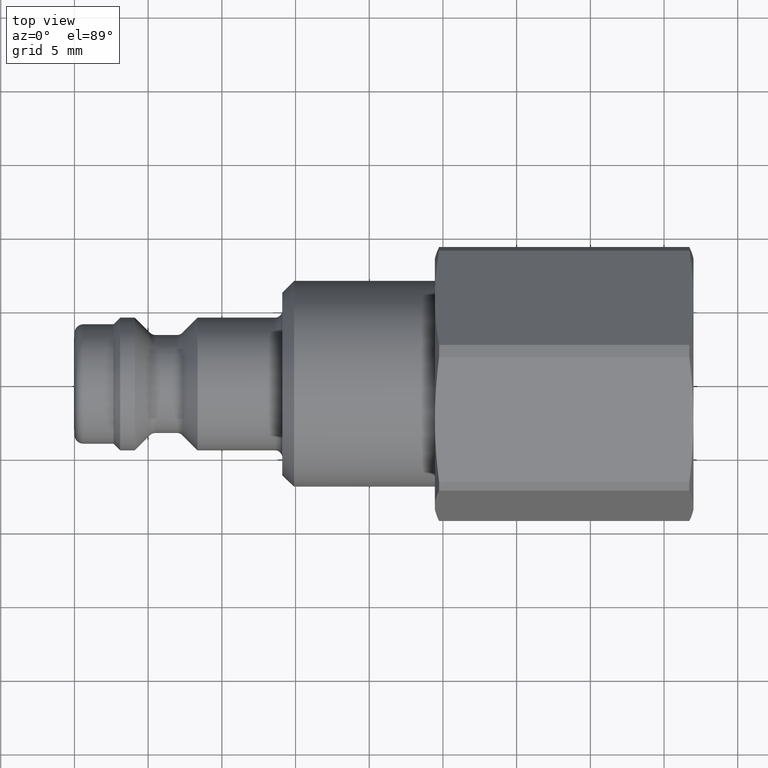
[diagram: clean part render]
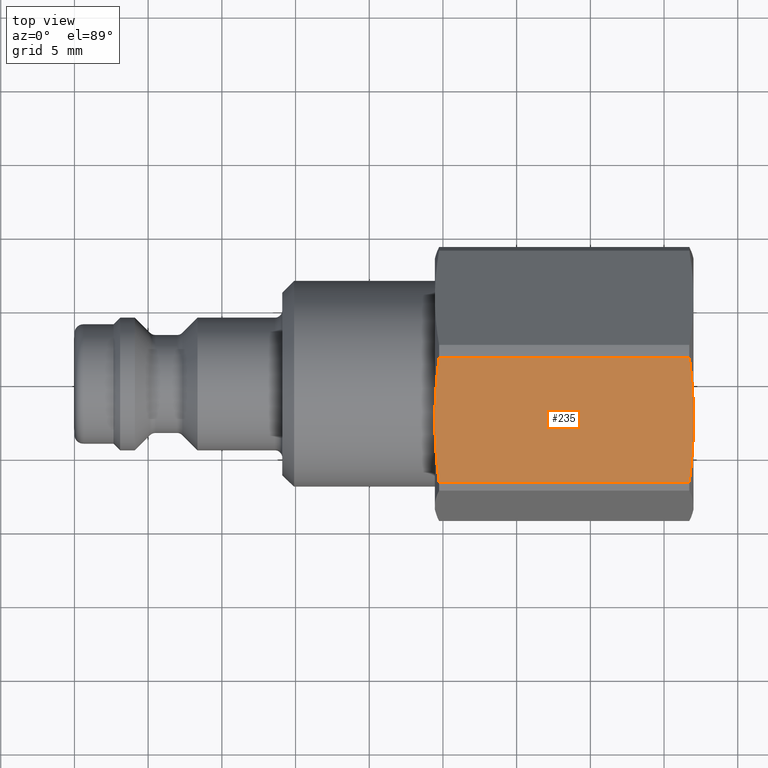
[diagram: same view with one face highlighted and labeled with its STEP entity id]
A machine part, top view. The second image highlights one B-rep face of the part: STEP entity #235.
In plain terms, the highlighted planar face has unit normal (-0, 0.3009, -0.9536).
Its self-contained STEP definition (entity closure, byte-faithful):
#152=CARTESIAN_POINT('',(22.353125314983892,-2.557830817781698,8.106016377210587));
#153=DIRECTION('',(-2.155763E-034,0.3009212726802,-0.953648985554186));
#154=DIRECTION('',(1.551403E-034,-0.953648985554186,-0.3009212726802));
#155=AXIS2_PLACEMENT_3D('',#152,#153,#154);
#156=PLANE('',#155);
#157=CARTESIAN_POINT('',(41.711954618136559,1.645871326281698,9.432482842673171));
#158=VERTEX_POINT('',#157);
#159=CARTESIAN_POINT('',(42.000000000000014,-2.557830817781698,8.106016377210587));
#160=VERTEX_POINT('',#159);
#161=CARTESIAN_POINT('',(41.711954618136559,1.6458713262817,9.432482842673171));
#162=CARTESIAN_POINT('',(42.000000000000014,-0.580986102731156,8.72980420329257));
#163=CARTESIAN_POINT('',(42.000000000000014,-2.557830817781698,8.106016377210587));
#171=(BOUNDED_CURVE()B_SPLINE_CURVE(2,(#161,#162,#163),.UNSPECIFIED.,.F.,.U.)B_SPLINE_CURVE_WITH_KNOTS((3,3),(0.0,0.441955310884671),.UNSPECIFIED.)CURVE()GEOMETRIC_REPRESENTATION_ITEM()RATIONAL_B_SPLINE_CURVE((1.0,1.031133014754949,1.0))REPRESENTATION_ITEM(''));
#172=EDGE_CURVE('',#158,#160,#171,.T.);
#173=ORIENTED_EDGE('',*,*,#172,.F.);
#174=CARTESIAN_POINT('',(24.738045381863468,1.645871326281703,9.432482842673172));
#175=VERTEX_POINT('',#174);
#176=CARTESIAN_POINT('',(24.738045381863465,1.6458713262817,9.432482842673171));
#177=DIRECTION('',(1.0,0.0,0.0));
#178=VECTOR('',#177,16.973909236273087);
#179=LINE('',#176,#178);
#180=EDGE_CURVE('',#175,#158,#179,.T.);
#181=ORIENTED_EDGE('',*,*,#180,.F.);
#182=CARTESIAN_POINT('',(24.450000000000006,-2.557830817781698,8.106016377210587));
#183=VERTEX_POINT('',#182);
#184=CARTESIAN_POINT('',(24.45000000000001,-2.557830817781698,8.106016377210587));
#185=CARTESIAN_POINT('',(24.45000000000001,-0.580986102731131,8.729804203292579));
#186=CARTESIAN_POINT('',(24.738045381863468,1.64587132628172,9.432482842673178));
#194=(BOUNDED_CURVE()B_SPLINE_CURVE(2,(#184,#185,#186),.UNSPECIFIED.,.F.,.U.)B_SPLINE_CURVE_WITH_KNOTS((3,3),(0.441955310884673,0.883910621769346),.UNSPECIFIED.)CURVE()GEOMETRIC_REPRESENTATION_ITEM()RATIONAL_B_SPLINE_CURVE((1.0,1.031133014754913,1.0))REPRESENTATION_ITEM(''));
#195=EDGE_CURVE('',#183,#175,#194,.T.);
#196=ORIENTED_EDGE('',*,*,#195,.F.);
#197=CARTESIAN_POINT('',(24.738045381863468,-6.761532961845099,6.779549911747998));
#198=VERTEX_POINT('',#197);
#199=CARTESIAN_POINT('',(24.738045381863468,-6.761532961845116,6.779549911747996));
#200=CARTESIAN_POINT('',(24.450000000000006,-4.534675532832265,7.482228551128594));
#201=CARTESIAN_POINT('',(24.45000000000001,-2.557830817781698,8.106016377210587));
#209=(BOUNDED_CURVE()B_SPLINE_CURVE(2,(#199,#200,#201),.UNSPECIFIED.,.F.,.U.)B_SPLINE_CURVE_WITH_KNOTS((3,3),(0.0,0.441955310884673),.UNSPECIFIED.)CURVE()GEOMETRIC_REPRESENTATION_ITEM()RATIONAL_B_SPLINE_CURVE((1.0,1.031133014754893,1.0))REPRESENTATION_ITEM(''));
#210=EDGE_CURVE('',#198,#183,#209,.T.);
#211=ORIENTED_EDGE('',*,*,#210,.F.);
#212=CARTESIAN_POINT('',(41.711954618136559,-6.761532961845093,6.779549911747999));
#213=VERTEX_POINT('',#212);
#214=CARTESIAN_POINT('',(41.711954618136552,-6.761532961845097,6.779549911747999));
#215=DIRECTION('',(-1.0,0.0,0.0));
#216=VECTOR('',#215,16.973909236273087);
#217=LINE('',#214,#216);
#218=EDGE_CURVE('',#213,#198,#217,.T.);
#219=ORIENTED_EDGE('',*,*,#218,.F.);
#220=CARTESIAN_POINT('',(42.000000000000014,-2.557830817781698,8.106016377210587));
#221=CARTESIAN_POINT('',(42.000000000000014,-4.534675532832237,7.482228551128602));
#222=CARTESIAN_POINT('',(41.711954618136559,-6.761532961845097,6.779549911747999));
#230=(BOUNDED_CURVE()B_SPLINE_CURVE(2,(#220,#221,#222),.UNSPECIFIED.,.F.,.U.)B_SPLINE_CURVE_WITH_KNOTS((3,3),(0.441955310884671,0.883910621769342),.UNSPECIFIED.)CURVE()GEOMETRIC_REPRESENTATION_ITEM()RATIONAL_B_SPLINE_CURVE((1.0,1.031133014754947,1.0))REPRESENTATION_ITEM(''));
#231=EDGE_CURVE('',#160,#213,#230,.T.);
#232=ORIENTED_EDGE('',*,*,#231,.F.);
#233=EDGE_LOOP('',(#173,#181,#196,#211,#219,#232));
#234=FACE_OUTER_BOUND('',#233,.T.);
#235=ADVANCED_FACE('',(#234),#156,.F.);